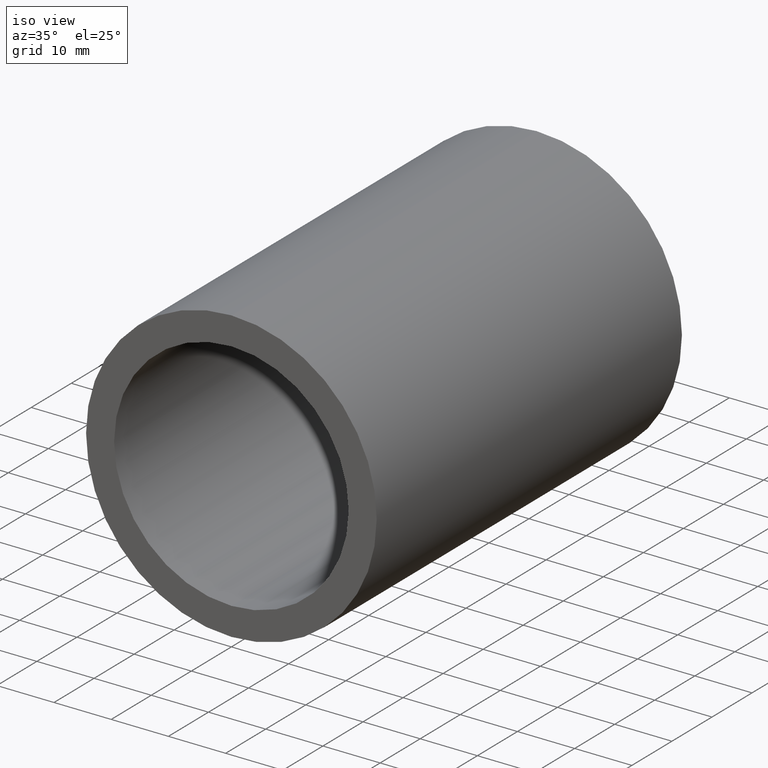
[diagram: clean part render]
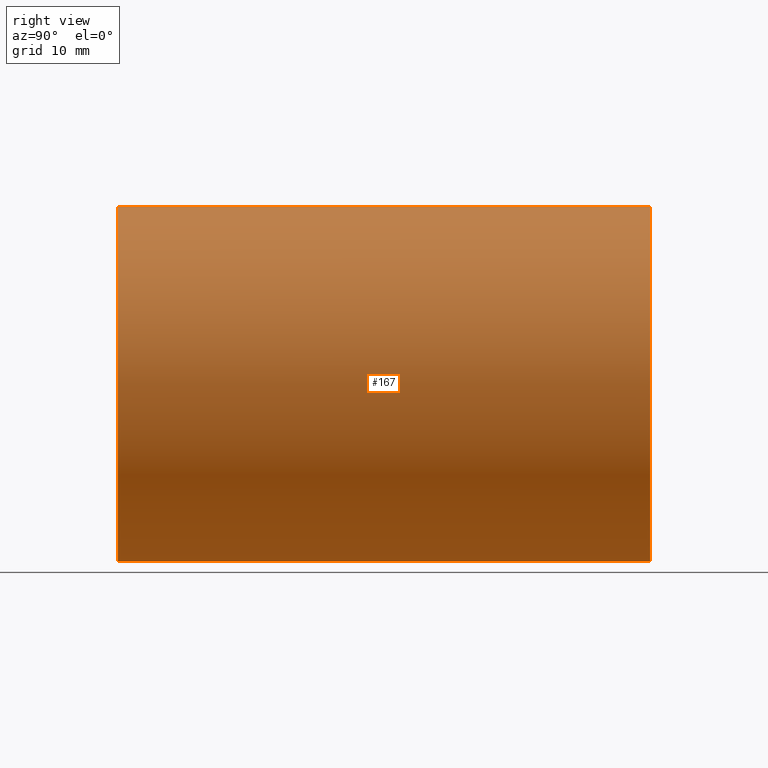
[diagram: tour spotlight — one face highlighted and labeled with its STEP entity id]
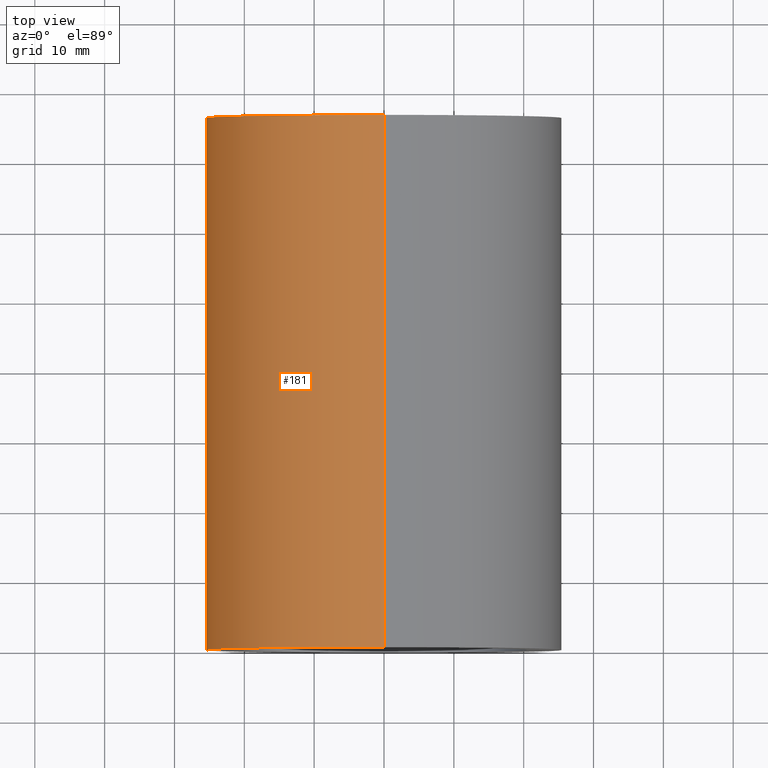
[diagram: tour spotlight — one face highlighted and labeled with its STEP entity id]
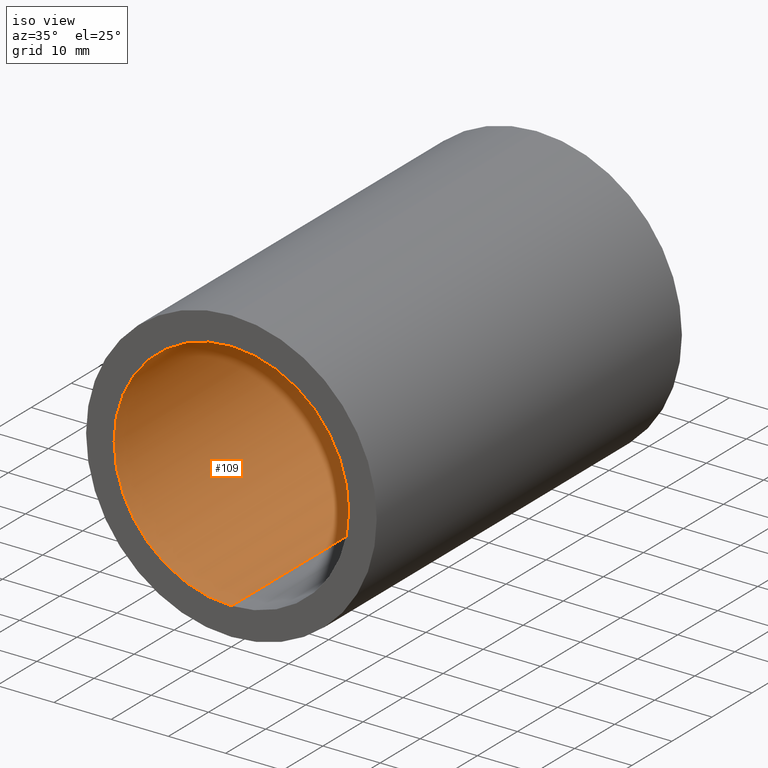
[diagram: tour spotlight — one face highlighted and labeled with its STEP entity id]
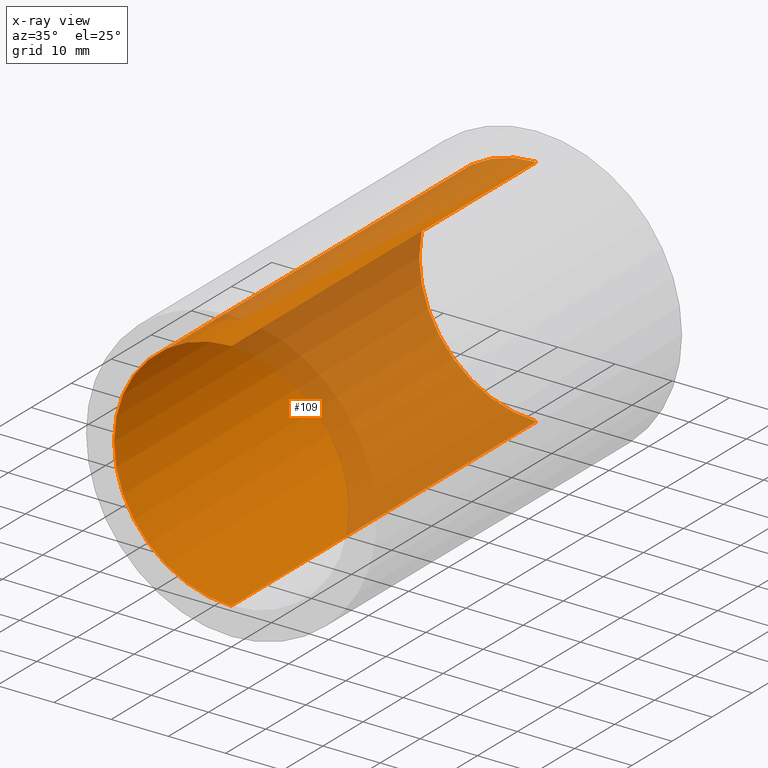
[diagram: x-ray of the same camera — body ghosted, this tour face saturated]
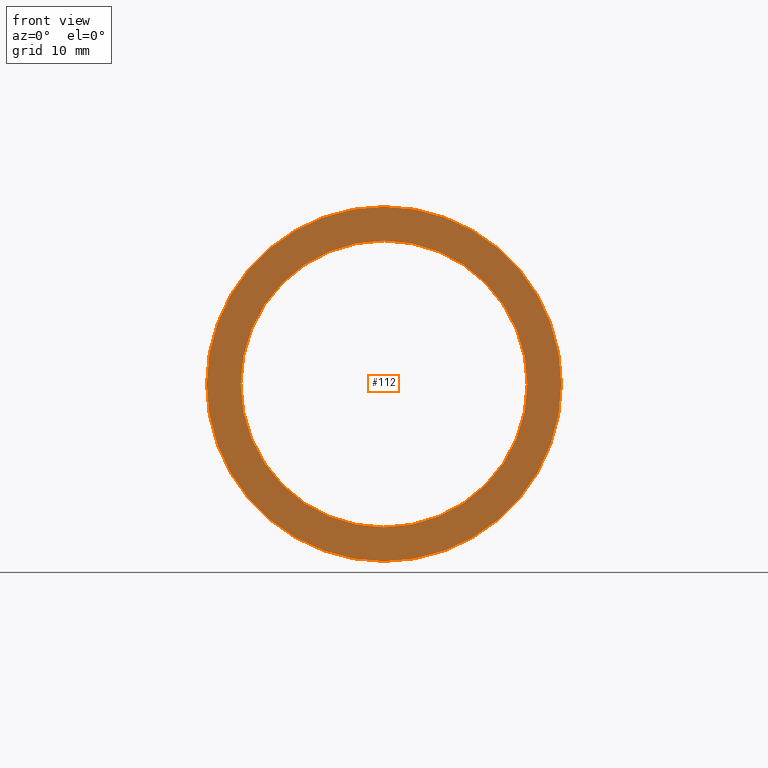
[diagram: tour spotlight — one face highlighted and labeled with its STEP entity id]
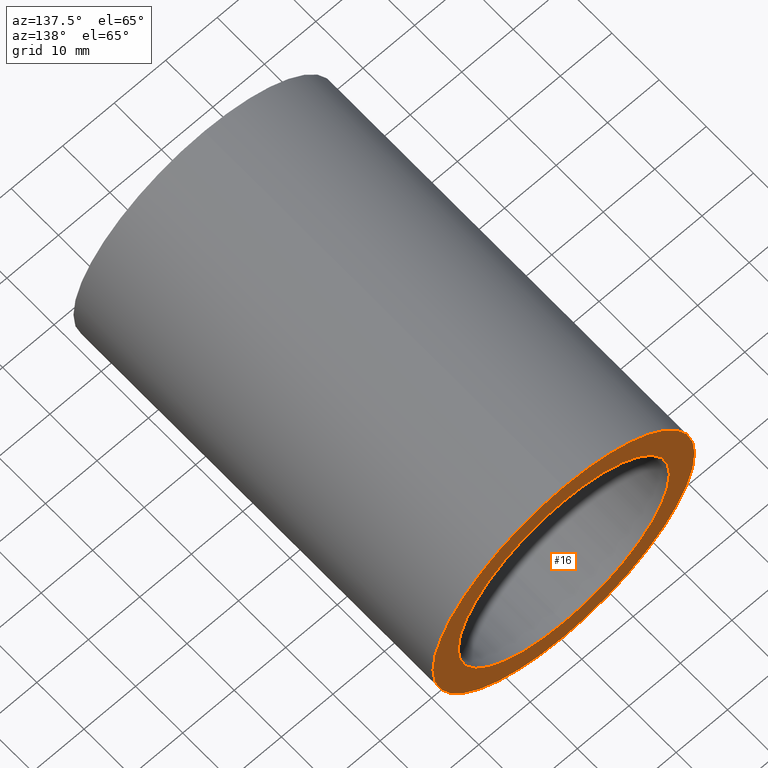
[diagram: tour spotlight — one face highlighted and labeled with its STEP entity id]
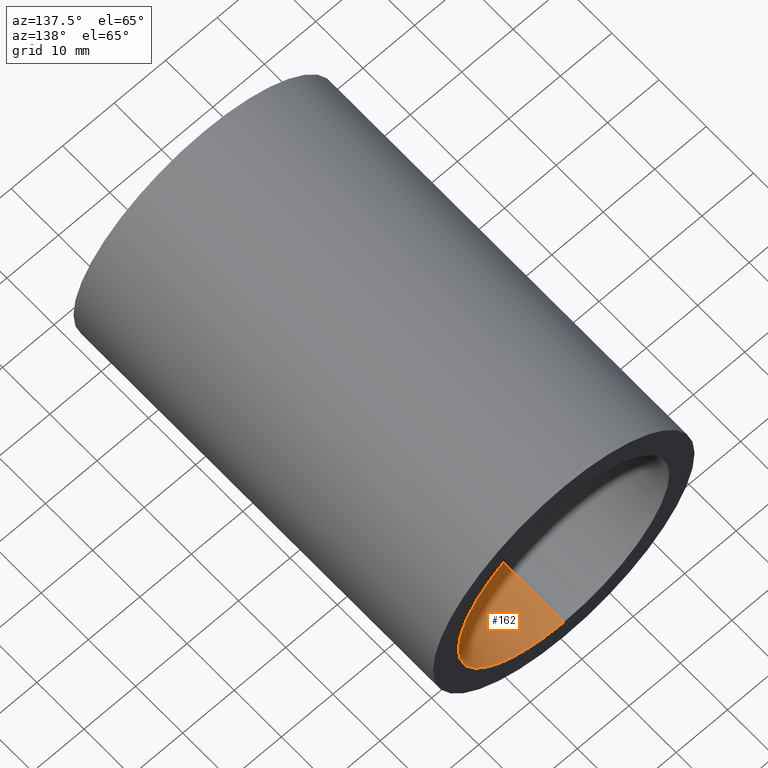
[diagram: tour spotlight — one face highlighted and labeled with its STEP entity id]
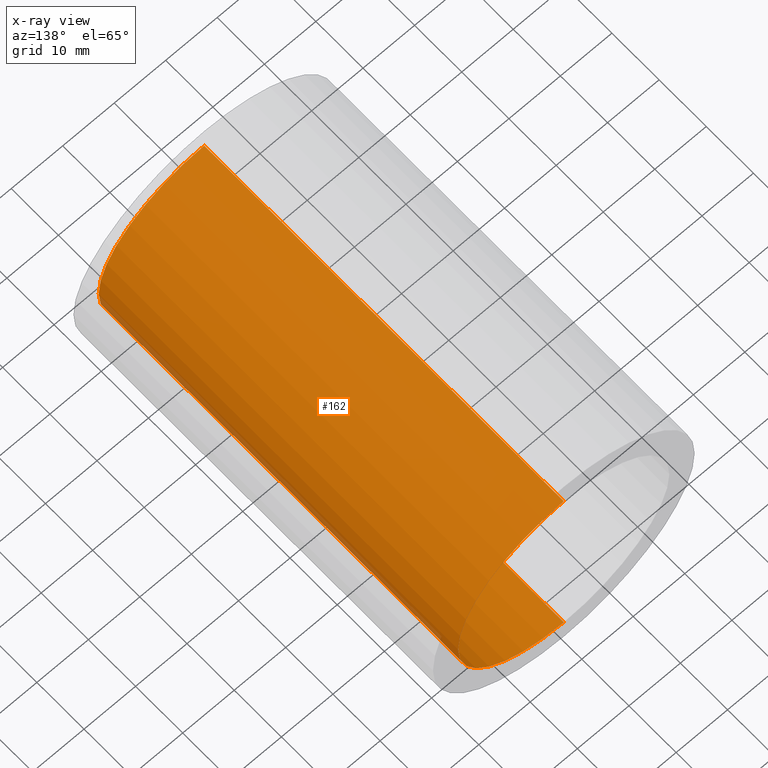
[diagram: x-ray of the same camera — body ghosted, this tour face saturated]
A machine part: a face-by-face anatomy tour. The part has 6 B-rep faces; the first image is the clean iso view, then the 6 largest visible faces are spotlighted one at a time (largest first), each with its STEP entity span.

Face 1 — right view, entity #167. In plain terms, the highlighted cylindrical surface (partial cylindrical patch) has radius 25.4 mm, axis along (-0, 1, -0).
Definition (entity closure, byte-faithful):
#1 = CARTESIAN_POINT ( 'NONE',  ( 0.0000000000000000000, 76.19999999999998900, 0.0000000000000000000 ) ) ;
#7 = FACE_OUTER_BOUND ( 'NONE', #45, .T. ) ;
#13 = DIRECTION ( 'NONE',  ( 0.0000000000000000000, 0.0000000000000000000, 1.000000000000000000 ) ) ;
#17 = CARTESIAN_POINT ( 'NONE',  ( 3.110602869834279600E-015, -2.775557561562891400E-014, -25.40000000000002000 ) ) ;
#20 = CARTESIAN_POINT ( 'NONE',  ( 0.0000000000000000000, 161.3761669434274500, 0.0000000000000000000 ) ) ;
#31 = AXIS2_PLACEMENT_3D ( 'NONE', #20, #91, #222 ) ;
#34 = EDGE_CURVE ( 'NONE', #235, #117, #223, .T. ) ;
#41 = DIRECTION ( 'NONE',  ( -0.0000000000000000000, 1.000000000000000000, -0.0000000000000000000 ) ) ;
#45 = EDGE_LOOP ( 'NONE', ( #151, #182, #97, #74 ) ) ;
#59 = CARTESIAN_POINT ( 'NONE',  ( 0.0000000000000000000, 161.3761669434274500, 25.40000000000002000 ) ) ;
#62 = CARTESIAN_POINT ( 'NONE',  ( 3.110602869834279600E-015, 76.19999999999998900, -25.40000000000002000 ) ) ;
#74 = ORIENTED_EDGE ( 'NONE', *, *, #168, .F. ) ;
#80 = CYLINDRICAL_SURFACE ( 'NONE', #31, 25.40000000000002000 ) ;
#87 = VECTOR ( 'NONE', #118, 1000.000000000000000 ) ;
#91 = DIRECTION ( 'NONE',  ( -0.0000000000000000000, 1.000000000000000000, -0.0000000000000000000 ) ) ;
#97 = ORIENTED_EDGE ( 'NONE', *, *, #230, .F. ) ;
#110 = CARTESIAN_POINT ( 'NONE',  ( 0.0000000000000000000, -2.775557561562891400E-014, 0.0000000000000000000 ) ) ;
#115 = LINE ( 'NONE', #225, #87 ) ;
#117 = VERTEX_POINT ( 'NONE', #17 ) ;
#118 = DIRECTION ( 'NONE',  ( -0.0000000000000000000, 1.000000000000000000, -0.0000000000000000000 ) ) ;
#130 = CARTESIAN_POINT ( 'NONE',  ( 0.0000000000000000000, 76.19999999999998900, 25.40000000000002000 ) ) ;
#137 = VERTEX_POINT ( 'NONE', #62 ) ;
#138 = EDGE_CURVE ( 'NONE', #117, #137, #115, .T. ) ;
#147 = CIRCLE ( 'NONE', #179, 25.40000000000002000 ) ;
#151 = ORIENTED_EDGE ( 'NONE', *, *, #34, .T. ) ;
#152 = DIRECTION ( 'NONE',  ( -0.0000000000000000000, 1.000000000000000000, -0.0000000000000000000 ) ) ;
#154 = VERTEX_POINT ( 'NONE', #130 ) ;
#167 = ADVANCED_FACE ( 'NONE', ( #7 ), #80, .T. ) ;
#168 = EDGE_CURVE ( 'NONE', #235, #154, #215, .T. ) ;
#169 = DIRECTION ( 'NONE',  ( 0.0000000000000000000, 0.0000000000000000000, 1.000000000000000000 ) ) ;
#179 = AXIS2_PLACEMENT_3D ( 'NONE', #1, #152, #169 ) ;
#182 = ORIENTED_EDGE ( 'NONE', *, *, #138, .T. ) ;
#186 = CARTESIAN_POINT ( 'NONE',  ( 0.0000000000000000000, -2.775557561562891400E-014, 25.40000000000002000 ) ) ;
#200 = VECTOR ( 'NONE', #41, 1000.000000000000000 ) ;
#203 = AXIS2_PLACEMENT_3D ( 'NONE', #110, #238, #13 ) ;
#215 = LINE ( 'NONE', #59, #200 ) ;
#222 = DIRECTION ( 'NONE',  ( 0.0000000000000000000, 0.0000000000000000000, 1.000000000000000000 ) ) ;
#223 = CIRCLE ( 'NONE', #203, 25.40000000000002000 ) ;
#225 = CARTESIAN_POINT ( 'NONE',  ( 3.110602869834279600E-015, 161.3761669434274500, -25.40000000000002000 ) ) ;
#230 = EDGE_CURVE ( 'NONE', #154, #137, #147, .T. ) ;
#235 = VERTEX_POINT ( 'NONE', #186 ) ;
#238 = DIRECTION ( 'NONE',  ( -0.0000000000000000000, 1.000000000000000000, -0.0000000000000000000 ) ) ;

Face 2 — top view, entity #181. In plain terms, the highlighted cylindrical surface (partial cylindrical patch) has radius 25.4 mm, axis along (-0, 1, -0).
Definition (entity closure, byte-faithful):
#5 = DIRECTION ( 'NONE',  ( 0.0000000000000000000, 0.0000000000000000000, 1.000000000000000000 ) ) ;
#8 = ORIENTED_EDGE ( 'NONE', *, *, #142, .F. ) ;
#17 = CARTESIAN_POINT ( 'NONE',  ( 3.110602869834279600E-015, -2.775557561562891400E-014, -25.40000000000002000 ) ) ;
#26 = CARTESIAN_POINT ( 'NONE',  ( 0.0000000000000000000, -2.775557561562891400E-014, 0.0000000000000000000 ) ) ;
#39 = CARTESIAN_POINT ( 'NONE',  ( 0.0000000000000000000, 76.19999999999998900, 0.0000000000000000000 ) ) ;
#41 = DIRECTION ( 'NONE',  ( -0.0000000000000000000, 1.000000000000000000, -0.0000000000000000000 ) ) ;
#42 = DIRECTION ( 'NONE',  ( 0.0000000000000000000, 0.0000000000000000000, 1.000000000000000000 ) ) ;
#59 = CARTESIAN_POINT ( 'NONE',  ( 0.0000000000000000000, 161.3761669434274500, 25.40000000000002000 ) ) ;
#62 = CARTESIAN_POINT ( 'NONE',  ( 3.110602869834279600E-015, 76.19999999999998900, -25.40000000000002000 ) ) ;
#72 = AXIS2_PLACEMENT_3D ( 'NONE', #26, #228, #5 ) ;
#78 = DIRECTION ( 'NONE',  ( -0.0000000000000000000, 1.000000000000000000, -0.0000000000000000000 ) ) ;
#87 = VECTOR ( 'NONE', #118, 1000.000000000000000 ) ;
#106 = ORIENTED_EDGE ( 'NONE', *, *, #241, .T. ) ;
#115 = LINE ( 'NONE', #225, #87 ) ;
#117 = VERTEX_POINT ( 'NONE', #17 ) ;
#118 = DIRECTION ( 'NONE',  ( -0.0000000000000000000, 1.000000000000000000, -0.0000000000000000000 ) ) ;
#124 = CYLINDRICAL_SURFACE ( 'NONE', #234, 25.40000000000002000 ) ;
#130 = CARTESIAN_POINT ( 'NONE',  ( 0.0000000000000000000, 76.19999999999998900, 25.40000000000002000 ) ) ;
#137 = VERTEX_POINT ( 'NONE', #62 ) ;
#138 = EDGE_CURVE ( 'NONE', #117, #137, #115, .T. ) ;
#142 = EDGE_CURVE ( 'NONE', #137, #154, #227, .T. ) ;
#149 = CARTESIAN_POINT ( 'NONE',  ( 0.0000000000000000000, 161.3761669434274500, 0.0000000000000000000 ) ) ;
#153 = AXIS2_PLACEMENT_3D ( 'NONE', #39, #78, #190 ) ;
#154 = VERTEX_POINT ( 'NONE', #130 ) ;
#163 = DIRECTION ( 'NONE',  ( -0.0000000000000000000, 1.000000000000000000, -0.0000000000000000000 ) ) ;
#168 = EDGE_CURVE ( 'NONE', #235, #154, #215, .T. ) ;
#181 = ADVANCED_FACE ( 'NONE', ( #184 ), #124, .T. ) ;
#184 = FACE_OUTER_BOUND ( 'NONE', #204, .T. ) ;
#186 = CARTESIAN_POINT ( 'NONE',  ( 0.0000000000000000000, -2.775557561562891400E-014, 25.40000000000002000 ) ) ;
#190 = DIRECTION ( 'NONE',  ( 0.0000000000000000000, 0.0000000000000000000, 1.000000000000000000 ) ) ;
#198 = ORIENTED_EDGE ( 'NONE', *, *, #138, .F. ) ;
#199 = ORIENTED_EDGE ( 'NONE', *, *, #168, .T. ) ;
#200 = VECTOR ( 'NONE', #41, 1000.000000000000000 ) ;
#204 = EDGE_LOOP ( 'NONE', ( #198, #106, #199, #8 ) ) ;
#209 = CIRCLE ( 'NONE', #72, 25.40000000000002000 ) ;
#215 = LINE ( 'NONE', #59, #200 ) ;
#225 = CARTESIAN_POINT ( 'NONE',  ( 3.110602869834279600E-015, 161.3761669434274500, -25.40000000000002000 ) ) ;
#227 = CIRCLE ( 'NONE', #153, 25.40000000000002000 ) ;
#228 = DIRECTION ( 'NONE',  ( -0.0000000000000000000, 1.000000000000000000, -0.0000000000000000000 ) ) ;
#234 = AXIS2_PLACEMENT_3D ( 'NONE', #149, #163, #42 ) ;
#235 = VERTEX_POINT ( 'NONE', #186 ) ;
#241 = EDGE_CURVE ( 'NONE', #117, #235, #209, .T. ) ;

Face 3 — iso view, entity #109. An x-ray twin of the same camera follows (body ghosted, this face saturated) — the face is partly hidden behind the body. In plain terms, the highlighted cylindrical surface (partial cylindrical patch) has radius 20.5 mm, axis along (-0, 1, -0).
Definition (entity closure, byte-faithful):
#3 = DIRECTION ( 'NONE',  ( -0.0000000000000000000, 1.000000000000000000, -0.0000000000000000000 ) ) ;
#14 = DIRECTION ( 'NONE',  ( -0.0000000000000000000, 1.000000000000000000, -0.0000000000000000000 ) ) ;
#23 = VECTOR ( 'NONE', #145, 1000.000000000000000 ) ;
#27 = FACE_OUTER_BOUND ( 'NONE', #237, .T. ) ;
#28 = VERTEX_POINT ( 'NONE', #127 ) ;
#30 = CIRCLE ( 'NONE', #48, 20.50000000000002100 ) ;
#35 = DIRECTION ( 'NONE',  ( 0.0000000000000000000, 0.0000000000000000000, 1.000000000000000000 ) ) ;
#43 = CARTESIAN_POINT ( 'NONE',  ( 2.510525938252075700E-015, 76.19999999999998900, -20.50000000000001100 ) ) ;
#48 = AXIS2_PLACEMENT_3D ( 'NONE', #239, #133, #242 ) ;
#50 = ORIENTED_EDGE ( 'NONE', *, *, #216, .F. ) ;
#52 = EDGE_CURVE ( 'NONE', #111, #159, #103, .T. ) ;
#56 = DIRECTION ( 'NONE',  ( -0.0000000000000000000, 1.000000000000000000, -0.0000000000000000000 ) ) ;
#66 = ORIENTED_EDGE ( 'NONE', *, *, #175, .F. ) ;
#71 = CIRCLE ( 'NONE', #212, 20.50000000000001100 ) ;
#86 = EDGE_CURVE ( 'NONE', #159, #28, #71, .T. ) ;
#92 = CARTESIAN_POINT ( 'NONE',  ( 0.0000000000000000000, 161.3761669434274500, 20.50000000000001800 ) ) ;
#94 = CARTESIAN_POINT ( 'NONE',  ( 2.510525938252076500E-015, -2.775557561562891400E-014, -20.50000000000002100 ) ) ;
#103 = LINE ( 'NONE', #183, #23 ) ;
#104 = ORIENTED_EDGE ( 'NONE', *, *, #52, .T. ) ;
#109 = ADVANCED_FACE ( 'NONE', ( #27 ), #196, .F. ) ;
#111 = VERTEX_POINT ( 'NONE', #94 ) ;
#116 = CARTESIAN_POINT ( 'NONE',  ( 0.0000000000000000000, -2.775557561562891400E-014, 20.50000000000002100 ) ) ;
#127 = CARTESIAN_POINT ( 'NONE',  ( 0.0000000000000000000, 76.19999999999998900, 20.50000000000001100 ) ) ;
#133 = DIRECTION ( 'NONE',  ( -0.0000000000000000000, 1.000000000000000000, -0.0000000000000000000 ) ) ;
#134 = ORIENTED_EDGE ( 'NONE', *, *, #86, .T. ) ;
#140 = CARTESIAN_POINT ( 'NONE',  ( 0.0000000000000000000, 161.3761669434274500, 0.0000000000000000000 ) ) ;
#141 = CARTESIAN_POINT ( 'NONE',  ( 0.0000000000000000000, 76.19999999999998900, 0.0000000000000000000 ) ) ;
#145 = DIRECTION ( 'NONE',  ( -0.0000000000000000000, 1.000000000000000000, -0.0000000000000000000 ) ) ;
#156 = VERTEX_POINT ( 'NONE', #116 ) ;
#159 = VERTEX_POINT ( 'NONE', #43 ) ;
#164 = VECTOR ( 'NONE', #3, 1000.000000000000000 ) ;
#165 = DIRECTION ( 'NONE',  ( 0.0000000000000000000, 0.0000000000000000000, 1.000000000000000000 ) ) ;
#174 = LINE ( 'NONE', #92, #164 ) ;
#175 = EDGE_CURVE ( 'NONE', #111, #156, #30, .T. ) ;
#183 = CARTESIAN_POINT ( 'NONE',  ( 2.510525938252076100E-015, 161.3761669434274500, -20.50000000000001800 ) ) ;
#196 = CYLINDRICAL_SURFACE ( 'NONE', #219, 20.50000000000001800 ) ;
#212 = AXIS2_PLACEMENT_3D ( 'NONE', #141, #56, #35 ) ;
#216 = EDGE_CURVE ( 'NONE', #156, #28, #174, .T. ) ;
#219 = AXIS2_PLACEMENT_3D ( 'NONE', #140, #14, #165 ) ;
#237 = EDGE_LOOP ( 'NONE', ( #66, #104, #134, #50 ) ) ;
#239 = CARTESIAN_POINT ( 'NONE',  ( 0.0000000000000000000, -2.775557561562891400E-014, 0.0000000000000000000 ) ) ;
#242 = DIRECTION ( 'NONE',  ( 0.0000000000000000000, 0.0000000000000000000, 1.000000000000000000 ) ) ;

Face 4 — front view, entity #112. In plain terms, the highlighted planar face has unit normal (-0, 1, 0).
Definition (entity closure, byte-faithful):
#5 = DIRECTION ( 'NONE',  ( 0.0000000000000000000, 0.0000000000000000000, 1.000000000000000000 ) ) ;
#11 = EDGE_CURVE ( 'NONE', #156, #111, #233, .T. ) ;
#12 = FACE_BOUND ( 'NONE', #201, .T. ) ;
#13 = DIRECTION ( 'NONE',  ( 0.0000000000000000000, 0.0000000000000000000, 1.000000000000000000 ) ) ;
#17 = CARTESIAN_POINT ( 'NONE',  ( 3.110602869834279600E-015, -2.775557561562891400E-014, -25.40000000000002000 ) ) ;
#19 = DIRECTION ( 'NONE',  ( -0.0000000000000000000, 1.000000000000000000, 0.0000000000000000000 ) ) ;
#26 = CARTESIAN_POINT ( 'NONE',  ( 0.0000000000000000000, -2.775557561562891400E-014, 0.0000000000000000000 ) ) ;
#30 = CIRCLE ( 'NONE', #48, 20.50000000000002100 ) ;
#34 = EDGE_CURVE ( 'NONE', #235, #117, #223, .T. ) ;
#48 = AXIS2_PLACEMENT_3D ( 'NONE', #239, #133, #242 ) ;
#55 = DIRECTION ( 'NONE',  ( -0.0000000000000000000, 1.000000000000000000, -0.0000000000000000000 ) ) ;
#72 = AXIS2_PLACEMENT_3D ( 'NONE', #26, #228, #5 ) ;
#82 = PLANE ( 'NONE',  #232 ) ;
#88 = EDGE_LOOP ( 'NONE', ( #100, #185 ) ) ;
#94 = CARTESIAN_POINT ( 'NONE',  ( 2.510525938252076500E-015, -2.775557561562891400E-014, -20.50000000000002100 ) ) ;
#100 = ORIENTED_EDGE ( 'NONE', *, *, #34, .F. ) ;
#107 = DIRECTION ( 'NONE',  ( 0.0000000000000000000, 0.0000000000000000000, 1.000000000000000000 ) ) ;
#110 = CARTESIAN_POINT ( 'NONE',  ( 0.0000000000000000000, -2.775557561562891400E-014, 0.0000000000000000000 ) ) ;
#111 = VERTEX_POINT ( 'NONE', #94 ) ;
#112 = ADVANCED_FACE ( 'NONE', ( #217, #12 ), #82, .F. ) ;
#113 = CARTESIAN_POINT ( 'NONE',  ( 20.50000000000002100, -1.424099456732195600E-014, 0.0000000000000000000 ) ) ;
#116 = CARTESIAN_POINT ( 'NONE',  ( 0.0000000000000000000, -2.775557561562891400E-014, 20.50000000000002100 ) ) ;
#117 = VERTEX_POINT ( 'NONE', #17 ) ;
#123 = AXIS2_PLACEMENT_3D ( 'NONE', #160, #55, #107 ) ;
#133 = DIRECTION ( 'NONE',  ( -0.0000000000000000000, 1.000000000000000000, -0.0000000000000000000 ) ) ;
#156 = VERTEX_POINT ( 'NONE', #116 ) ;
#160 = CARTESIAN_POINT ( 'NONE',  ( 0.0000000000000000000, -2.775557561562891400E-014, 0.0000000000000000000 ) ) ;
#175 = EDGE_CURVE ( 'NONE', #111, #156, #30, .T. ) ;
#185 = ORIENTED_EDGE ( 'NONE', *, *, #241, .F. ) ;
#186 = CARTESIAN_POINT ( 'NONE',  ( 0.0000000000000000000, -2.775557561562891400E-014, 25.40000000000002000 ) ) ;
#191 = ORIENTED_EDGE ( 'NONE', *, *, #11, .T. ) ;
#201 = EDGE_LOOP ( 'NONE', ( #191, #210 ) ) ;
#203 = AXIS2_PLACEMENT_3D ( 'NONE', #110, #238, #13 ) ;
#209 = CIRCLE ( 'NONE', #72, 25.40000000000002000 ) ;
#210 = ORIENTED_EDGE ( 'NONE', *, *, #175, .T. ) ;
#217 = FACE_OUTER_BOUND ( 'NONE', #88, .T. ) ;
#223 = CIRCLE ( 'NONE', #203, 25.40000000000002000 ) ;
#226 = DIRECTION ( 'NONE',  ( 0.0000000000000000000, 0.0000000000000000000, 1.000000000000000000 ) ) ;
#228 = DIRECTION ( 'NONE',  ( -0.0000000000000000000, 1.000000000000000000, -0.0000000000000000000 ) ) ;
#232 = AXIS2_PLACEMENT_3D ( 'NONE', #113, #19, #226 ) ;
#233 = CIRCLE ( 'NONE', #123, 20.50000000000002100 ) ;
#235 = VERTEX_POINT ( 'NONE', #186 ) ;
#238 = DIRECTION ( 'NONE',  ( -0.0000000000000000000, 1.000000000000000000, -0.0000000000000000000 ) ) ;
#239 = CARTESIAN_POINT ( 'NONE',  ( 0.0000000000000000000, -2.775557561562891400E-014, 0.0000000000000000000 ) ) ;
#241 = EDGE_CURVE ( 'NONE', #117, #235, #209, .T. ) ;
#242 = DIRECTION ( 'NONE',  ( 0.0000000000000000000, 0.0000000000000000000, 1.000000000000000000 ) ) ;

Face 5 — auxiliary view, entity #16. In plain terms, the highlighted planar face has unit normal (0, -1, 0).
Definition (entity closure, byte-faithful):
#1 = CARTESIAN_POINT ( 'NONE',  ( 0.0000000000000000000, 76.19999999999998900, 0.0000000000000000000 ) ) ;
#16 = ADVANCED_FACE ( 'NONE', ( #144, #85 ), #33, .F. ) ;
#28 = VERTEX_POINT ( 'NONE', #127 ) ;
#32 = CIRCLE ( 'NONE', #95, 20.50000000000001100 ) ;
#33 = PLANE ( 'NONE',  #129 ) ;
#35 = DIRECTION ( 'NONE',  ( 0.0000000000000000000, 0.0000000000000000000, 1.000000000000000000 ) ) ;
#39 = CARTESIAN_POINT ( 'NONE',  ( 0.0000000000000000000, 76.19999999999998900, 0.0000000000000000000 ) ) ;
#43 = CARTESIAN_POINT ( 'NONE',  ( 2.510525938252075700E-015, 76.19999999999998900, -20.50000000000001100 ) ) ;
#49 = EDGE_CURVE ( 'NONE', #28, #159, #32, .T. ) ;
#54 = DIRECTION ( 'NONE',  ( 0.0000000000000000000, -0.0000000000000000000, -1.000000000000000000 ) ) ;
#56 = DIRECTION ( 'NONE',  ( -0.0000000000000000000, 1.000000000000000000, -0.0000000000000000000 ) ) ;
#62 = CARTESIAN_POINT ( 'NONE',  ( 3.110602869834279600E-015, 76.19999999999998900, -25.40000000000002000 ) ) ;
#68 = ORIENTED_EDGE ( 'NONE', *, *, #142, .T. ) ;
#71 = CIRCLE ( 'NONE', #212, 20.50000000000001100 ) ;
#77 = DIRECTION ( 'NONE',  ( 0.0000000000000000000, 0.0000000000000000000, 1.000000000000000000 ) ) ;
#78 = DIRECTION ( 'NONE',  ( -0.0000000000000000000, 1.000000000000000000, -0.0000000000000000000 ) ) ;
#81 = ORIENTED_EDGE ( 'NONE', *, *, #49, .F. ) ;
#85 = FACE_OUTER_BOUND ( 'NONE', #206, .T. ) ;
#86 = EDGE_CURVE ( 'NONE', #159, #28, #71, .T. ) ;
#90 = CARTESIAN_POINT ( 'NONE',  ( 0.0000000000000000000, 76.19999999999998900, 0.0000000000000000000 ) ) ;
#95 = AXIS2_PLACEMENT_3D ( 'NONE', #90, #126, #77 ) ;
#102 = EDGE_LOOP ( 'NONE', ( #81, #231 ) ) ;
#126 = DIRECTION ( 'NONE',  ( -0.0000000000000000000, 1.000000000000000000, -0.0000000000000000000 ) ) ;
#127 = CARTESIAN_POINT ( 'NONE',  ( 0.0000000000000000000, 76.19999999999998900, 20.50000000000001100 ) ) ;
#129 = AXIS2_PLACEMENT_3D ( 'NONE', #236, #205, #54 ) ;
#130 = CARTESIAN_POINT ( 'NONE',  ( 0.0000000000000000000, 76.19999999999998900, 25.40000000000002000 ) ) ;
#132 = ORIENTED_EDGE ( 'NONE', *, *, #230, .T. ) ;
#137 = VERTEX_POINT ( 'NONE', #62 ) ;
#141 = CARTESIAN_POINT ( 'NONE',  ( 0.0000000000000000000, 76.19999999999998900, 0.0000000000000000000 ) ) ;
#142 = EDGE_CURVE ( 'NONE', #137, #154, #227, .T. ) ;
#144 = FACE_BOUND ( 'NONE', #102, .T. ) ;
#147 = CIRCLE ( 'NONE', #179, 25.40000000000002000 ) ;
#152 = DIRECTION ( 'NONE',  ( -0.0000000000000000000, 1.000000000000000000, -0.0000000000000000000 ) ) ;
#153 = AXIS2_PLACEMENT_3D ( 'NONE', #39, #78, #190 ) ;
#154 = VERTEX_POINT ( 'NONE', #130 ) ;
#159 = VERTEX_POINT ( 'NONE', #43 ) ;
#169 = DIRECTION ( 'NONE',  ( 0.0000000000000000000, 0.0000000000000000000, 1.000000000000000000 ) ) ;
#179 = AXIS2_PLACEMENT_3D ( 'NONE', #1, #152, #169 ) ;
#190 = DIRECTION ( 'NONE',  ( 0.0000000000000000000, 0.0000000000000000000, 1.000000000000000000 ) ) ;
#205 = DIRECTION ( 'NONE',  ( 0.0000000000000000000, -1.000000000000000000, 0.0000000000000000000 ) ) ;
#206 = EDGE_LOOP ( 'NONE', ( #132, #68 ) ) ;
#212 = AXIS2_PLACEMENT_3D ( 'NONE', #141, #56, #35 ) ;
#227 = CIRCLE ( 'NONE', #153, 25.40000000000002000 ) ;
#230 = EDGE_CURVE ( 'NONE', #154, #137, #147, .T. ) ;
#231 = ORIENTED_EDGE ( 'NONE', *, *, #86, .F. ) ;
#236 = CARTESIAN_POINT ( 'NONE',  ( 20.50000000000001100, 76.19999999999998900, 0.0000000000000000000 ) ) ;

Face 6 — auxiliary view, entity #162. An x-ray twin of the same camera follows (body ghosted, this face saturated) — the face is partly hidden behind the body. In plain terms, the highlighted cylindrical surface (partial cylindrical patch) has radius 20.5 mm, axis along (-0, 1, -0).
Definition (entity closure, byte-faithful):
#3 = DIRECTION ( 'NONE',  ( -0.0000000000000000000, 1.000000000000000000, -0.0000000000000000000 ) ) ;
#4 = EDGE_LOOP ( 'NONE', ( #240, #125, #47, #218 ) ) ;
#11 = EDGE_CURVE ( 'NONE', #156, #111, #233, .T. ) ;
#23 = VECTOR ( 'NONE', #145, 1000.000000000000000 ) ;
#24 = AXIS2_PLACEMENT_3D ( 'NONE', #187, #208, #114 ) ;
#28 = VERTEX_POINT ( 'NONE', #127 ) ;
#32 = CIRCLE ( 'NONE', #95, 20.50000000000001100 ) ;
#43 = CARTESIAN_POINT ( 'NONE',  ( 2.510525938252075700E-015, 76.19999999999998900, -20.50000000000001100 ) ) ;
#47 = ORIENTED_EDGE ( 'NONE', *, *, #216, .T. ) ;
#49 = EDGE_CURVE ( 'NONE', #28, #159, #32, .T. ) ;
#52 = EDGE_CURVE ( 'NONE', #111, #159, #103, .T. ) ;
#55 = DIRECTION ( 'NONE',  ( -0.0000000000000000000, 1.000000000000000000, -0.0000000000000000000 ) ) ;
#77 = DIRECTION ( 'NONE',  ( 0.0000000000000000000, 0.0000000000000000000, 1.000000000000000000 ) ) ;
#90 = CARTESIAN_POINT ( 'NONE',  ( 0.0000000000000000000, 76.19999999999998900, 0.0000000000000000000 ) ) ;
#92 = CARTESIAN_POINT ( 'NONE',  ( 0.0000000000000000000, 161.3761669434274500, 20.50000000000001800 ) ) ;
#94 = CARTESIAN_POINT ( 'NONE',  ( 2.510525938252076500E-015, -2.775557561562891400E-014, -20.50000000000002100 ) ) ;
#95 = AXIS2_PLACEMENT_3D ( 'NONE', #90, #126, #77 ) ;
#103 = LINE ( 'NONE', #183, #23 ) ;
#105 = FACE_OUTER_BOUND ( 'NONE', #4, .T. ) ;
#107 = DIRECTION ( 'NONE',  ( 0.0000000000000000000, 0.0000000000000000000, 1.000000000000000000 ) ) ;
#111 = VERTEX_POINT ( 'NONE', #94 ) ;
#114 = DIRECTION ( 'NONE',  ( 0.0000000000000000000, 0.0000000000000000000, 1.000000000000000000 ) ) ;
#116 = CARTESIAN_POINT ( 'NONE',  ( 0.0000000000000000000, -2.775557561562891400E-014, 20.50000000000002100 ) ) ;
#123 = AXIS2_PLACEMENT_3D ( 'NONE', #160, #55, #107 ) ;
#125 = ORIENTED_EDGE ( 'NONE', *, *, #11, .F. ) ;
#126 = DIRECTION ( 'NONE',  ( -0.0000000000000000000, 1.000000000000000000, -0.0000000000000000000 ) ) ;
#127 = CARTESIAN_POINT ( 'NONE',  ( 0.0000000000000000000, 76.19999999999998900, 20.50000000000001100 ) ) ;
#145 = DIRECTION ( 'NONE',  ( -0.0000000000000000000, 1.000000000000000000, -0.0000000000000000000 ) ) ;
#156 = VERTEX_POINT ( 'NONE', #116 ) ;
#159 = VERTEX_POINT ( 'NONE', #43 ) ;
#160 = CARTESIAN_POINT ( 'NONE',  ( 0.0000000000000000000, -2.775557561562891400E-014, 0.0000000000000000000 ) ) ;
#162 = ADVANCED_FACE ( 'NONE', ( #105 ), #176, .F. ) ;
#164 = VECTOR ( 'NONE', #3, 1000.000000000000000 ) ;
#174 = LINE ( 'NONE', #92, #164 ) ;
#176 = CYLINDRICAL_SURFACE ( 'NONE', #24, 20.50000000000001800 ) ;
#183 = CARTESIAN_POINT ( 'NONE',  ( 2.510525938252076100E-015, 161.3761669434274500, -20.50000000000001800 ) ) ;
#187 = CARTESIAN_POINT ( 'NONE',  ( 0.0000000000000000000, 161.3761669434274500, 0.0000000000000000000 ) ) ;
#208 = DIRECTION ( 'NONE',  ( -0.0000000000000000000, 1.000000000000000000, -0.0000000000000000000 ) ) ;
#216 = EDGE_CURVE ( 'NONE', #156, #28, #174, .T. ) ;
#218 = ORIENTED_EDGE ( 'NONE', *, *, #49, .T. ) ;
#233 = CIRCLE ( 'NONE', #123, 20.50000000000002100 ) ;
#240 = ORIENTED_EDGE ( 'NONE', *, *, #52, .F. ) ;